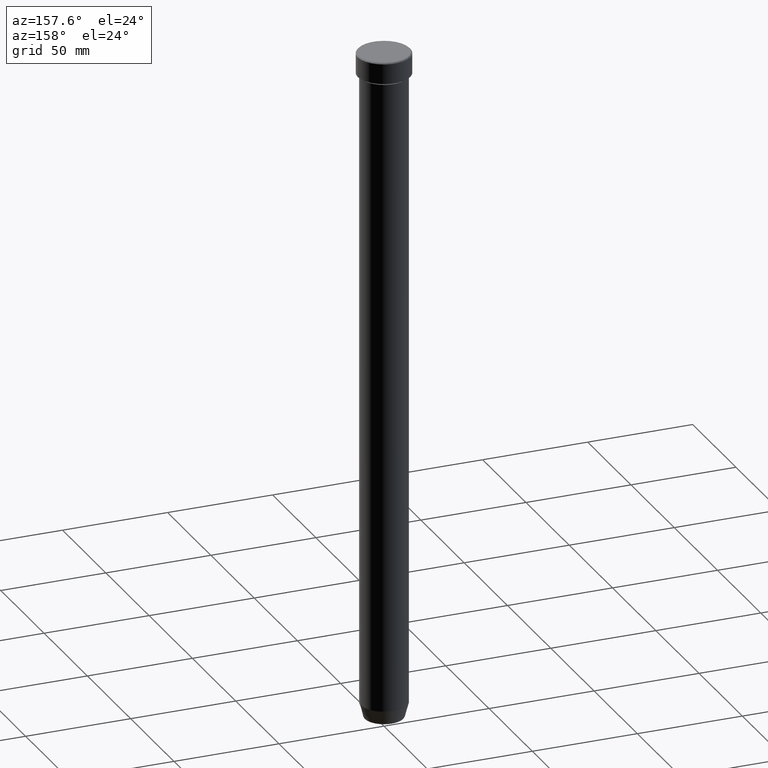
[diagram: clean part render]
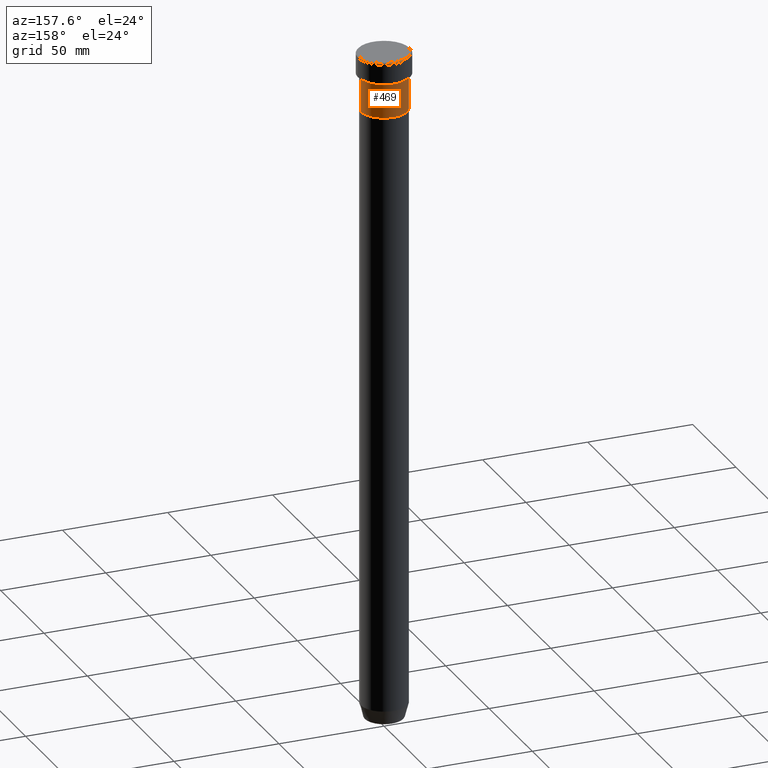
[diagram: same view with one face highlighted and labeled with its STEP entity id]
A machine part, auxiliary view. The second image highlights one B-rep face of the part: STEP entity #469.
In plain terms, the highlighted cylindrical surface (edge-blend (fillet) strip) has radius 11 mm, axis along (-0, -0, 1).
Its self-contained STEP definition (entity closure, byte-faithful):
#6 = ORIENTED_EDGE ( 'NONE', *, *, #14, .T. ) ;
#14 = EDGE_CURVE ( 'NONE', #295, #29, #341, .T. ) ;
#18 = DIRECTION ( 'NONE',  ( 1.000000000000000000, 0.000000000000000000, 0.000000000000000000 ) ) ;
#22 = CARTESIAN_POINT ( 'NONE',  ( 0.000000000000000000, 0.000000000000000000, -11.00000000000000000 ) ) ;
#29 = VERTEX_POINT ( 'NONE', #304 ) ;
#77 = CARTESIAN_POINT ( 'NONE',  ( -11.00000000000000000, 1.347111479062088405E-15, 0.000000000000000000 ) ) ;
#101 = DIRECTION ( 'NONE',  ( 1.000000000000000000, 0.000000000000000000, 0.000000000000000000 ) ) ;
#106 = FACE_OUTER_BOUND ( 'NONE', #426, .T. ) ;
#127 = EDGE_CURVE ( 'NONE', #348, #295, #417, .T. ) ;
#146 = CARTESIAN_POINT ( 'NONE',  ( 0.000000000000000000, 0.000000000000000000, 0.000000000000000000 ) ) ;
#181 = VECTOR ( 'NONE', #283, 1000.000000000000000 ) ;
#186 = CARTESIAN_POINT ( 'NONE',  ( -11.00000000000000000, 1.347111479062088405E-15, -27.00000000000000000 ) ) ;
#187 = ORIENTED_EDGE ( 'NONE', *, *, #127, .T. ) ;
#199 = AXIS2_PLACEMENT_3D ( 'NONE', #22, #279, #18 ) ;
#250 = ORIENTED_EDGE ( 'NONE', *, *, #430, .F. ) ;
#279 = DIRECTION ( 'NONE',  ( -0.000000000000000000, -0.000000000000000000, 1.000000000000000000 ) ) ;
#283 = DIRECTION ( 'NONE',  ( -0.000000000000000000, -0.000000000000000000, 1.000000000000000000 ) ) ;
#290 = CARTESIAN_POINT ( 'NONE',  ( 11.00000000000000000, 0.000000000000000000, -11.00000000000000000 ) ) ;
#295 = VERTEX_POINT ( 'NONE', #186 ) ;
#304 = CARTESIAN_POINT ( 'NONE',  ( -11.00000000000000000, 1.347111479062088405E-15, -11.00000000000000000 ) ) ;
#325 = DIRECTION ( 'NONE',  ( 1.000000000000000000, 0.000000000000000000, 0.000000000000000000 ) ) ;
#341 = LINE ( 'NONE', #77, #428 ) ;
#348 = VERTEX_POINT ( 'NONE', #515 ) ;
#369 = LINE ( 'NONE', #424, #181 ) ;
#373 = AXIS2_PLACEMENT_3D ( 'NONE', #505, #414, #325 ) ;
#378 = DIRECTION ( 'NONE',  ( -0.000000000000000000, -0.000000000000000000, 1.000000000000000000 ) ) ;
#397 = EDGE_CURVE ( 'NONE', #348, #525, #369, .T. ) ;
#406 = CIRCLE ( 'NONE', #199, 11.00000000000000000 ) ;
#414 = DIRECTION ( 'NONE',  ( -0.000000000000000000, -0.000000000000000000, 1.000000000000000000 ) ) ;
#417 = CIRCLE ( 'NONE', #373, 11.00000000000000000 ) ;
#424 = CARTESIAN_POINT ( 'NONE',  ( 11.00000000000000000, 0.000000000000000000, 0.000000000000000000 ) ) ;
#426 = EDGE_LOOP ( 'NONE', ( #187, #6, #250, #500 ) ) ;
#427 = AXIS2_PLACEMENT_3D ( 'NONE', #146, #378, #101 ) ;
#428 = VECTOR ( 'NONE', #593, 1000.000000000000000 ) ;
#430 = EDGE_CURVE ( 'NONE', #525, #29, #406, .T. ) ;
#469 = ADVANCED_FACE ( 'NONE', ( #106 ), #521, .T. ) ;
#500 = ORIENTED_EDGE ( 'NONE', *, *, #397, .F. ) ;
#505 = CARTESIAN_POINT ( 'NONE',  ( 0.000000000000000000, 0.000000000000000000, -27.00000000000000000 ) ) ;
#515 = CARTESIAN_POINT ( 'NONE',  ( 11.00000000000000000, 0.000000000000000000, -27.00000000000000000 ) ) ;
#521 = CYLINDRICAL_SURFACE ( 'NONE', #427, 11.00000000000000000 ) ;
#525 = VERTEX_POINT ( 'NONE', #290 ) ;
#593 = DIRECTION ( 'NONE',  ( -0.000000000000000000, -0.000000000000000000, 1.000000000000000000 ) ) ;